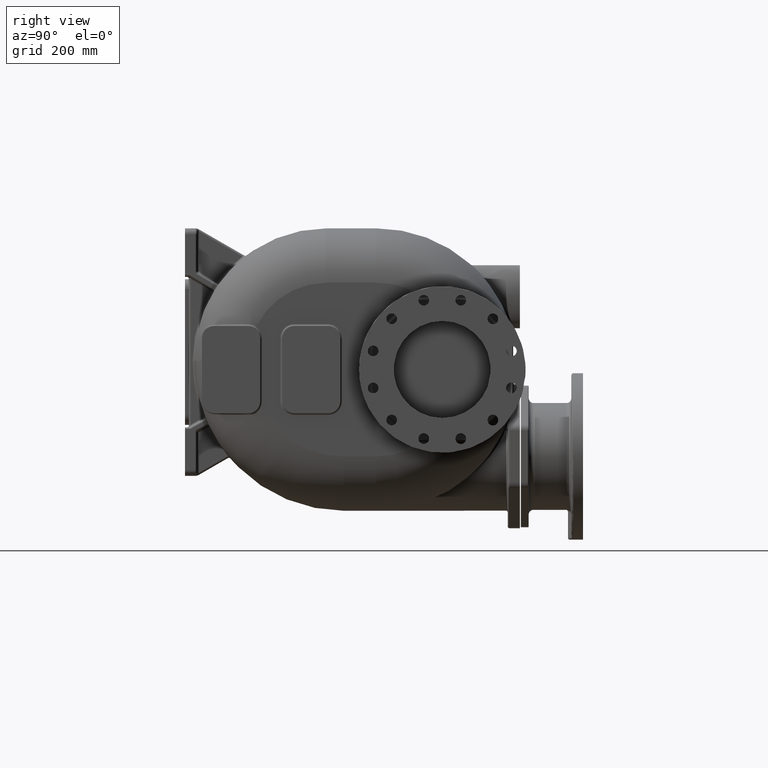
[diagram: clean part render]
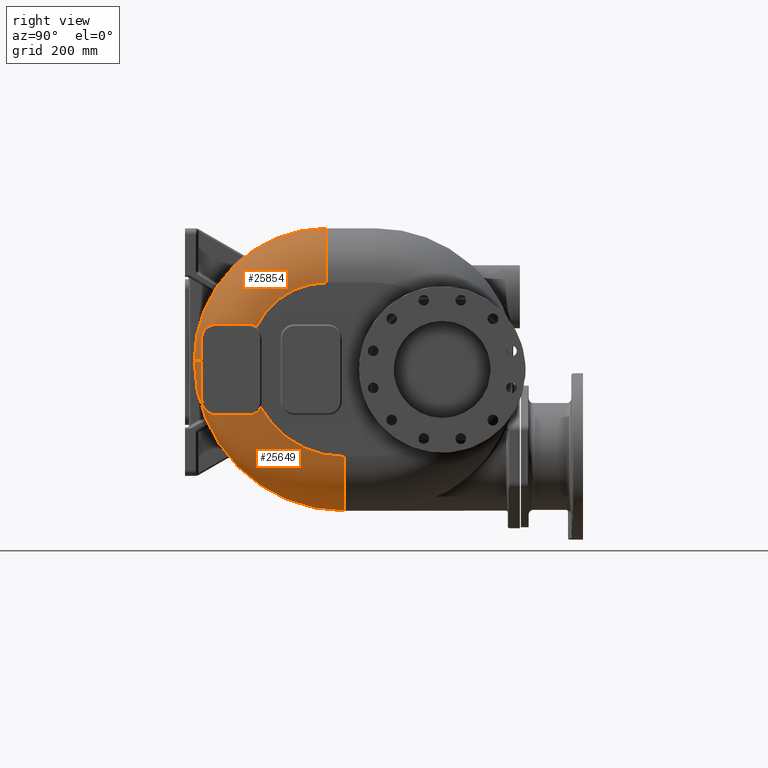
[diagram: same view with one multi-face feature highlighted, each face labeled with its STEP entity id]
A machine part, right view. The highlighted faces form ONE feature: a constant-radius fillet chain: 2 tangent blend faces with common blend radius 112 mm. The faces share edges in the B-rep.
Their STEP definitions:
[1] entity #25649 (Torus):
#2697=CARTESIAN_POINT('',(1.36E2,3.28E2,-1.8E1));
#2698=DIRECTION('',(1.E0,0.E0,0.E0));
#2699=DIRECTION('',(0.E0,-1.E0,0.E0));
#2700=AXIS2_PLACEMENT_3D('',#2697,#2698,#2699);
#4772=CARTESIAN_POINT('',(1.672949240605E2,3.469895152067E1,-9.996628627530E1));
#4773=CARTESIAN_POINT('',(1.671399033274E2,3.469992224291E1,-1.001373556917E2));
#4774=CARTESIAN_POINT('',(1.668409293172E2,3.470479170282E1,-1.004743755294E2));
#4775=CARTESIAN_POINT('',(1.664249908145E2,3.472045772033E1,-1.009654113129E2));
#4776=CARTESIAN_POINT('',(1.660431148490E2,3.474349742183E1,-1.014386891867E2));
#4777=CARTESIAN_POINT('',(1.656954130136E2,3.477280370240E1,-1.018919022476E2));
#4778=CARTESIAN_POINT('',(1.653820718824E2,3.480692693115E1,-1.023214130557E2));
#4779=CARTESIAN_POINT('',(1.651011258450E2,3.484498824612E1,-1.027275902532E2));
#4780=CARTESIAN_POINT('',(1.648483328228E2,3.488669435597E1,-1.031147613705E2));
#4781=CARTESIAN_POINT('',(1.646196812224E2,3.493184193477E1,-1.034869988806E2));
#4782=CARTESIAN_POINT('',(1.644124938687E2,3.498019251298E1,-1.038467372658E2));
#4783=CARTESIAN_POINT('',(1.642249448213E2,3.503140659501E1,-1.041951132892E2));
#4784=CARTESIAN_POINT('',(1.640549891373E2,3.508528923255E1,-1.045338436220E2));
#4785=CARTESIAN_POINT('',(1.639009720932E2,3.514168556456E1,-1.048643093004E2));
#4786=CARTESIAN_POINT('',(1.637627965646E2,3.520021574577E1,-1.051856567752E2));
#4787=CARTESIAN_POINT('',(1.636400418360E2,3.526051767977E1,-1.054973666954E2));
#4788=CARTESIAN_POINT('',(1.635322248870E2,3.532218340557E1,-1.057987947571E2));
#4789=CARTESIAN_POINT('',(1.634385237303E2,3.538494025003E1,-1.060900195894E2));
#4790=CARTESIAN_POINT('',(1.633581005847E2,3.544851836699E1,-1.063711088943E2));
#4791=CARTESIAN_POINT('',(1.632895429985E2,3.551321878954E1,-1.066444828617E2));
#4792=CARTESIAN_POINT('',(1.632314228550E2,3.557992119187E1,-1.069144136390E2));
#4793=CARTESIAN_POINT('',(1.631831449610E2,3.564940529581E1,-1.071840511124E2));
#4794=CARTESIAN_POINT('',(1.631441494284E2,3.572200973772E1,-1.074550230952E2));
#4795=CARTESIAN_POINT('',(1.631141343026E2,3.579846383242E1,-1.077299747648E2));
#4796=CARTESIAN_POINT('',(1.630935830101E2,3.587827121058E1,-1.080068610388E2));
#4797=CARTESIAN_POINT('',(1.630828137151E2,3.596026986012E1,-1.082816460756E2));
#4798=CARTESIAN_POINT('',(1.630816555643E2,3.604325582249E1,-1.085506185530E2));
#4799=CARTESIAN_POINT('',(1.630897306343E2,3.612729134144E1,-1.088143486428E2));
#4800=CARTESIAN_POINT('',(1.631068871244E2,3.621257623722E1,-1.090736381084E2));
#4801=CARTESIAN_POINT('',(1.631332014991E2,3.629941603154E1,-1.093294200189E2));
#4802=CARTESIAN_POINT('',(1.631691911028E2,3.638890322116E1,-1.095847444688E2));
#4803=CARTESIAN_POINT('',(1.632151824467E2,3.648209347434E1,-1.098426531262E2));
#4804=CARTESIAN_POINT('',(1.632720120570E2,3.658011982237E1,-1.101059562243E2));
#4805=CARTESIAN_POINT('',(1.633403566950E2,3.668341765431E1,-1.103753421930E2));
#4806=CARTESIAN_POINT('',(1.634210638719E2,3.679252681955E1,-1.106516573943E2));
#4807=CARTESIAN_POINT('',(1.635148785612E2,3.690769912545E1,-1.109348908140E2));
#4808=CARTESIAN_POINT('',(1.636218015092E2,3.702834682539E1,-1.112230031346E2));
#4809=CARTESIAN_POINT('',(1.637415235263E2,3.715378366597E1,-1.115139218259E2));
#4810=CARTESIAN_POINT('',(1.638744816166E2,3.728421768281E1,-1.118077402991E2));
#4811=CARTESIAN_POINT('',(1.640218355204E2,3.742039481028E1,-1.121055780037E2));
#4812=CARTESIAN_POINT('',(1.641848982800E2,3.756306729065E1,-1.124083826933E2));
#4813=CARTESIAN_POINT('',(1.643648724364E2,3.771287251190E1,-1.127167804482E2));
#4814=CARTESIAN_POINT('',(1.645642795076E2,3.787147368607E1,-1.130333459241E2));
#4815=CARTESIAN_POINT('',(1.647860317455E2,3.804070035113E1,-1.133606812075E2));
#4816=CARTESIAN_POINT('',(1.650333781823E2,3.822252289442E1,-1.137013461801E2));
#4817=CARTESIAN_POINT('',(1.653081808128E2,3.841801888234E1,-1.140561817869E2));
#4818=CARTESIAN_POINT('',(1.656113536885E2,3.862753313793E1,-1.144244931270E2));
#4819=CARTESIAN_POINT('',(1.659445547389E2,3.885148036291E1,-1.148050376351E2));
#4820=CARTESIAN_POINT('',(1.663104243548E2,3.909114167277E1,-1.151981421878E2));
#4821=CARTESIAN_POINT('',(1.667128505899E2,3.934867651871E1,-1.156053728349E2));
#4822=CARTESIAN_POINT('',(1.671553083135E2,3.962611035168E1,-1.160278977214E2));
#4823=CARTESIAN_POINT('',(1.676416344105E2,3.992605141286E1,-1.164678825212E2));
#4824=CARTESIAN_POINT('',(1.681772832619E2,4.025149134123E1,-1.169266079974E2));
#4825=CARTESIAN_POINT('',(1.687643598784E2,4.060349216586E1,-1.174022214611E2));
#4826=CARTESIAN_POINT('',(1.694023428615E2,4.098191403430E1,-1.178915408121E2));
#4827=CARTESIAN_POINT('',(1.700935963322E2,4.138893946509E1,-1.183950719994E2));
#4828=CARTESIAN_POINT('',(1.708423908824E2,4.182763321543E1,-1.189133782701E2));
#4829=CARTESIAN_POINT('',(1.716530183063E2,4.230098400146E1,-1.194459965217E2));
#4830=CARTESIAN_POINT('',(1.725291668491E2,4.281210340039E1,-1.199924956382E2));
#4831=CARTESIAN_POINT('',(1.734677027624E2,4.336064947871E1,-1.205490828533E2));
#4832=CARTESIAN_POINT('',(1.744659570942E2,4.394620512883E1,-1.211112867553E2));
#4833=CARTESIAN_POINT('',(1.755210737179E2,4.456849441094E1,-1.216751666602E2));
#4834=CARTESIAN_POINT('',(1.766275797987E2,4.522609983550E1,-1.222366489186E2));
#4835=CARTESIAN_POINT('',(1.777793516737E2,4.591697757704E1,-1.227912156213E2));
#4836=CARTESIAN_POINT('',(1.789704754038E2,4.663897480167E1,-1.233344709261E2));
#4837=CARTESIAN_POINT('',(1.801942639346E2,4.738960207249E1,-1.238627807621E2));
#4838=CARTESIAN_POINT('',(1.814438833923E2,4.816604815353E1,-1.243727527237E2));
#4839=CARTESIAN_POINT('',(1.827124523092E2,4.896503738166E1,-1.248608511916E2));
#4840=CARTESIAN_POINT('',(1.839940090330E2,4.978378796158E1,-1.253247125887E2));
#4841=CARTESIAN_POINT('',(1.852836204502E2,5.061995520015E1,-1.257626420349E2));
#4842=CARTESIAN_POINT('',(1.865760861925E2,5.147063846477E1,-1.261726941953E2));
#4843=CARTESIAN_POINT('',(1.878672737335E2,5.233350569085E1,-1.265537557442E2));
#4844=CARTESIAN_POINT('',(1.891539795749E2,5.320668900502E1,-1.269052106774E2));
#4845=CARTESIAN_POINT('',(1.904328412429E2,5.408793564938E1,-1.272262564062E2));
#4846=CARTESIAN_POINT('',(1.917010517275E2,5.497526362413E1,-1.275165167057E2));
#4847=CARTESIAN_POINT('',(1.929563000837E2,5.586694079444E1,-1.277759349929E2));
#4848=CARTESIAN_POINT('',(1.941961354834E2,5.676093335823E1,-1.280043446219E2));
#4849=CARTESIAN_POINT('',(1.954187607512E2,5.765558276922E1,-1.282018775350E2));
#4850=CARTESIAN_POINT('',(1.966233017909E2,5.854987061055E1,-1.283689749779E2));
#4851=CARTESIAN_POINT('',(1.978087912650E2,5.944262000642E1,-1.285059884557E2));
#4852=CARTESIAN_POINT('',(1.989743811224E2,6.033266295219E1,-1.286132723223E2));
#4853=CARTESIAN_POINT('',(2.001191941472E2,6.121882157338E1,-1.286912888214E2));
#4854=CARTESIAN_POINT('',(2.012425757360E2,6.209998804672E1,-1.287406916174E2));
#4855=CARTESIAN_POINT('',(2.019763340590E2,6.268319389477E1,-1.287547812500E2));
#4856=CARTESIAN_POINT('',(2.023395633732E2,6.297365139369E1,-1.287572800099E2));
#4858=CARTESIAN_POINT('',(2.023395633732E2,6.297365139369E1,-1.287572800099E2));
#4859=CARTESIAN_POINT('',(2.028560539846E2,6.338670809961E1,-1.287608377425E2));
#4860=CARTESIAN_POINT('',(2.038834268704E2,6.422326556516E1,-1.287682330542E2));
#4861=CARTESIAN_POINT('',(2.054066675670E2,6.550996550006E1,-1.287794121625E2));
#4862=CARTESIAN_POINT('',(2.069113494365E2,6.682778630957E1,-1.287910001793E2));
#4863=CARTESIAN_POINT('',(2.083966301021E2,6.817635637886E1,-1.288029029721E2));
#4864=CARTESIAN_POINT('',(2.098617094520E2,6.955515944464E1,-1.288151457256E2));
#4865=CARTESIAN_POINT('',(2.113058182797E2,7.096370000208E1,-1.288277294497E2));
#4866=CARTESIAN_POINT('',(2.127281290451E2,7.240136155865E1,-1.288406686636E2));
#4867=CARTESIAN_POINT('',(2.141282979738E2,7.386798159497E1,-1.288539852213E2));
#4868=CARTESIAN_POINT('',(2.155061965501E2,7.536364968027E1,-1.288677123493E2));
#4869=CARTESIAN_POINT('',(2.168616275253E2,7.688841615789E1,-1.288818793615E2));
#4870=CARTESIAN_POINT('',(2.181944848334E2,7.844245438478E1,-1.288964756595E2));
#4871=CARTESIAN_POINT('',(2.195046270914E2,8.002595128443E1,-1.289114996515E2));
#4872=CARTESIAN_POINT('',(2.207919443391E2,8.163918792789E1,-1.289269531435E2));
#4873=CARTESIAN_POINT('',(2.220560113402E2,8.328210424685E1,-1.289428390579E2));
#4874=CARTESIAN_POINT('',(2.232957603930E2,8.495376465335E1,-1.289591556585E2));
#4875=CARTESIAN_POINT('',(2.245102483032E2,8.665328473009E1,-1.289759054946E2));
#4876=CARTESIAN_POINT('',(2.256986504967E2,8.837983923890E1,-1.289930955109E2));
#4877=CARTESIAN_POINT('',(2.268608869568E2,9.013365351477E1,-1.290107468220E2));
#4878=CARTESIAN_POINT('',(2.279967738683E2,9.191487079906E1,-1.290288844979E2));
#4879=CARTESIAN_POINT('',(2.291061198051E2,9.372367131971E1,-1.290475353682E2));
#4880=CARTESIAN_POINT('',(2.301887553051E2,9.556032330347E1,-1.290666998325E2));
#4881=CARTESIAN_POINT('',(2.312444500672E2,9.742505945607E1,-1.290863836672E2));
#4882=CARTESIAN_POINT('',(2.322730093305E2,9.931826070828E1,-1.291065974841E2));
#4883=CARTESIAN_POINT('',(2.332736282491E2,1.012392102710E2,-1.291273440803E2));
#4884=CARTESIAN_POINT('',(2.342454235522E2,1.031869203281E2,-1.291486266574E2));
#4885=CARTESIAN_POINT('',(2.351875082213E2,1.051602363420E2,-1.291704498035E2));
#4886=CARTESIAN_POINT('',(2.360995265122E2,1.071590044043E2,-1.291928323361E2));
#4887=CARTESIAN_POINT('',(2.369813978840E2,1.091837470356E2,-1.292158042437E2));
#4888=CARTESIAN_POINT('',(2.378329213673E2,1.112348408889E2,-1.292393971435E2));
#4889=CARTESIAN_POINT('',(2.386538653375E2,1.133126974602E2,-1.292636470521E2));
#4890=CARTESIAN_POINT('',(2.394439508462E2,1.154177065283E2,-1.292885578947E2));
#4891=CARTESIAN_POINT('',(2.402028753168E2,1.175503172368E2,-1.293141393901E2));
#4892=CARTESIAN_POINT('',(2.409302062486E2,1.197107360111E2,-1.293404038638E2));
#4893=CARTESIAN_POINT('',(2.416252435829E2,1.218983911452E2,-1.293673580975E2));
#4894=CARTESIAN_POINT('',(2.422873544369E2,1.241127850065E2,-1.293950177594E2));
#4895=CARTESIAN_POINT('',(2.429158805603E2,1.263533774580E2,-1.294233888232E2));
#4896=CARTESIAN_POINT('',(2.435103174565E2,1.286195603948E2,-1.294525297767E2));
#4897=CARTESIAN_POINT('',(2.438832414884E2,1.301471064749E2,-1.294723889157E2));
#4898=CARTESIAN_POINT('',(2.440639287063E2,1.309148942948E2,-1.294824840369E2));
#4900=CARTESIAN_POINT('',(2.440639287063E2,1.309148942948E2,-1.294824840369E2));
#4901=CARTESIAN_POINT('',(2.441207367301E2,1.311563389867E2,-1.294856085190E2));
#4902=CARTESIAN_POINT('',(2.442338503577E2,1.316383384252E2,-1.294850719431E2));
#4903=CARTESIAN_POINT('',(2.444009789249E2,1.323591474810E2,-1.294665695324E2));
#4904=CARTESIAN_POINT('',(2.445657276592E2,1.330767852542E2,-1.294293115231E2));
#4905=CARTESIAN_POINT('',(2.447277525538E2,1.337907185954E2,-1.293738171054E2));
#4906=CARTESIAN_POINT('',(2.448868628296E2,1.345003099385E2,-1.293002023250E2));
#4907=CARTESIAN_POINT('',(2.450428447462E2,1.352049675058E2,-1.292087078743E2));
#4908=CARTESIAN_POINT('',(2.451955076072E2,1.359040981307E2,-1.290995668787E2));
#4909=CARTESIAN_POINT('',(2.453448099855E2,1.365977639598E2,-1.289729007110E2));
#4910=CARTESIAN_POINT('',(2.454907122620E2,1.372860398006E2,-1.288288092646E2));
#4911=CARTESIAN_POINT('',(2.456331794040E2,1.379690614172E2,-1.286674175973E2));
#4912=CARTESIAN_POINT('',(2.457720750303E2,1.386464495976E2,-1.284889193336E2));
#4913=CARTESIAN_POINT('',(2.459072636751E2,1.393177848496E2,-1.282935278692E2));
#4914=CARTESIAN_POINT('',(2.460386281185E2,1.399826946111E2,-1.280814396680E2));
#4915=CARTESIAN_POINT('',(2.461659855697E2,1.406404183670E2,-1.278529911072E2));
#4916=CARTESIAN_POINT('',(2.462891688111E2,1.412901969739E2,-1.276085637113E2));
#4917=CARTESIAN_POINT('',(2.464080177456E2,1.419312204444E2,-1.273486134481E2));
#4918=CARTESIAN_POINT('',(2.465225369475E2,1.425635019767E2,-1.270732851682E2));
#4919=CARTESIAN_POINT('',(2.466327583547E2,1.431872009728E2,-1.267826060029E2));
#4920=CARTESIAN_POINT('',(2.467387034937E2,1.438024162006E2,-1.264765765826E2));
#4921=CARTESIAN_POINT('',(2.468403977583E2,1.444093279083E2,-1.261552286826E2));
#4922=CARTESIAN_POINT('',(2.469378560417E2,1.450080452611E2,-1.258185673195E2));
#4923=CARTESIAN_POINT('',(2.470311221186E2,1.455988684964E2,-1.254664030615E2));
#4924=CARTESIAN_POINT('',(2.471200177436E2,1.461806516317E2,-1.250993789941E2));
#4925=CARTESIAN_POINT('',(2.472043255739E2,1.467517876456E2,-1.247185721150E2));
#4926=CARTESIAN_POINT('',(2.472838842060E2,1.473108020618E2,-1.243251521952E2));
#4927=CARTESIAN_POINT('',(2.473586423052E2,1.478567754813E2,-1.239200498490E2));
#4928=CARTESIAN_POINT('',(2.474286142187E2,1.483891221299E2,-1.235040263438E2));
#4929=CARTESIAN_POINT('',(2.474938134199E2,1.489071090206E2,-1.230780426464E2));
#4930=CARTESIAN_POINT('',(2.475543693567E2,1.494108013636E2,-1.226424387202E2));
#4931=CARTESIAN_POINT('',(2.476104624699E2,1.499007737093E2,-1.221971948162E2));
#4932=CARTESIAN_POINT('',(2.476622569911E2,1.503775574342E2,-1.217422539964E2));
#4933=CARTESIAN_POINT('',(2.477098664295E2,1.508412591142E2,-1.212778606371E2));
#4934=CARTESIAN_POINT('',(2.477533748804E2,1.512916538033E2,-1.208045807651E2));
#4935=CARTESIAN_POINT('',(2.477928834042E2,1.517286050820E2,-1.203229058599E2));
#4936=CARTESIAN_POINT('',(2.478285001930E2,1.521519853315E2,-1.198333251346E2));
#4937=CARTESIAN_POINT('',(2.478603436383E2,1.525617222601E2,-1.193362688034E2));
#4938=CARTESIAN_POINT('',(2.478885334348E2,1.529576945417E2,-1.188322304881E2));
#4939=CARTESIAN_POINT('',(2.479132101322E2,1.533400135729E2,-1.183214157953E2));
#4940=CARTESIAN_POINT('',(2.479345384219E2,1.537092548401E2,-1.178032972244E2));
#4941=CARTESIAN_POINT('',(2.479526617025E2,1.540658867630E2,-1.172773891287E2));
#4942=CARTESIAN_POINT('',(2.479677062208E2,1.544103095997E2,-1.167433088659E2));
#4943=CARTESIAN_POINT('',(2.479797749503E2,1.547425124178E2,-1.162011854201E2));
#4944=CARTESIAN_POINT('',(2.479889743207E2,1.550624797988E2,-1.156510532479E2));
#4945=CARTESIAN_POINT('',(2.479954075118E2,1.553702744201E2,-1.150930036154E2));
#4946=CARTESIAN_POINT('',(2.479991877012E2,1.556655010843E2,-1.145268973687E2));
#4947=CARTESIAN_POINT('',(2.479999918413E2,1.558547423964E2,-1.141445456270E2));
#4948=CARTESIAN_POINT('',(2.479999929474E2,1.559470193424E2,-1.139519175091E2));
#4950=CARTESIAN_POINT('',(1.36E2,1.31E2,-1.8E1));
#4951=DIRECTION('',(0.E0,0.E0,-1.E0));
#4952=DIRECTION('',(5.067909812655E-1,-8.620689655172E-1,0.E0));
#4953=AXIS2_PLACEMENT_3D('',#4950,#4951,#4952);
#4955=CARTESIAN_POINT('',(1.927605921540E2,3.444827203097E1,-1.799999999986E1));
#4956=CARTESIAN_POINT('',(1.927606233562E2,3.444828027144E1,-1.885732292922E1));
#4957=CARTESIAN_POINT('',(1.927482635998E2,3.444854237092E1,-2.057113288367E1));
#4958=CARTESIAN_POINT('',(1.926922462452E2,3.444939599510E1,-2.314154970632E1));
#4959=CARTESIAN_POINT('',(1.925988086210E2,3.445074451928E1,-2.570656003189E1));
#4960=CARTESIAN_POINT('',(1.924681059699E2,3.445254032399E1,-2.826302633707E1));
#4961=CARTESIAN_POINT('',(1.923004663408E2,3.445478415760E1,-3.080730315331E1));
#4962=CARTESIAN_POINT('',(1.920963766874E2,3.445749153471E1,-3.333589511356E1));
#4963=CARTESIAN_POINT('',(1.918564723548E2,3.446069523918E1,-3.584533502422E1));
#4964=CARTESIAN_POINT('',(1.915816021117E2,3.446446443095E1,-3.833204479676E1));
#4965=CARTESIAN_POINT('',(1.912723604993E2,3.446871304970E1,-4.079340302532E1));
#4966=CARTESIAN_POINT('',(1.909293481362E2,3.447335046379E1,-4.322723045483E1));
#4967=CARTESIAN_POINT('',(1.905533008375E2,3.447832125258E1,-4.563128876803E1));
#4968=CARTESIAN_POINT('',(1.901450556426E2,3.448359362591E1,-4.800342556868E1));
#4969=CARTESIAN_POINT('',(1.897055594247E2,3.448916337723E1,-5.034156839083E1));
#4970=CARTESIAN_POINT('',(1.892358580099E2,3.449504382627E1,-5.264370033052E1));
#4971=CARTESIAN_POINT('',(1.887371567984E2,3.450129344576E1,-5.490784795488E1));
#4972=CARTESIAN_POINT('',(1.882105249212E2,3.450788441066E1,-5.713231225694E1));
#4973=CARTESIAN_POINT('',(1.876569237750E2,3.451470051440E1,-5.931544172232E1));
#4974=CARTESIAN_POINT('',(1.870774931043E2,3.452167756646E1,-6.145556513954E1));
#4975=CARTESIAN_POINT('',(1.864733469403E2,3.452877269612E1,-6.355152362321E1));
#4976=CARTESIAN_POINT('',(1.858455173971E2,3.453597250436E1,-6.560276487877E1));
#4977=CARTESIAN_POINT('',(1.851951124827E2,3.454328353814E1,-6.760869448867E1));
#4978=CARTESIAN_POINT('',(1.845232954372E2,3.455074361049E1,-6.956883842164E1));
#4979=CARTESIAN_POINT('',(1.838312667845E2,3.455837095489E1,-7.148260999434E1));
#4980=CARTESIAN_POINT('',(1.831200738871E2,3.456606128156E1,-7.334927587825E1));
#4981=CARTESIAN_POINT('',(1.823909024059E2,3.457375502060E1,-7.516812346530E1));
#4982=CARTESIAN_POINT('',(1.816447874926E2,3.458141387207E1,-7.693902997022E1));
#4983=CARTESIAN_POINT('',(1.808826289249E2,3.458902466968E1,-7.866232136126E1));
#4984=CARTESIAN_POINT('',(1.801053684426E2,3.459659523165E1,-8.033831281982E1));
#4985=CARTESIAN_POINT('',(1.793139259721E2,3.460414753305E1,-8.196741427785E1));
#4986=CARTESIAN_POINT('',(1.785095567151E2,3.461173415884E1,-8.354952910918E1));
#4987=CARTESIAN_POINT('',(1.776933808399E2,3.461929306415E1,-8.508439993257E1));
#4988=CARTESIAN_POINT('',(1.768665924117E2,3.462674841803E1,-8.657167256043E1));
#4989=CARTESIAN_POINT('',(1.760301273404E2,3.463405843091E1,-8.801167743017E1));
#4990=CARTESIAN_POINT('',(1.751845078353E2,3.464120242614E1,-8.940548714157E1));
#4991=CARTESIAN_POINT('',(1.743303088792E2,3.464817767773E1,-9.075406481510E1));
#4992=CARTESIAN_POINT('',(1.734679444745E2,3.465499882969E1,-9.205859457874E1));
#4993=CARTESIAN_POINT('',(1.725983378511E2,3.466168975778E1,-9.331947559006E1));
#4994=CARTESIAN_POINT('',(1.717226739840E2,3.466828950084E1,-9.453684924443E1));
#4995=CARTESIAN_POINT('',(1.708421171938E2,3.467476739932E1,-9.571069974803E1));
#4996=CARTESIAN_POINT('',(1.699578535942E2,3.468109434429E1,-9.684107484867E1));
#4997=CARTESIAN_POINT('',(1.690710776043E2,3.468724819065E1,-9.792812113557E1));
#4998=CARTESIAN_POINT('',(1.681829624705E2,3.469321747753E1,-9.897212305606E1));
#4999=CARTESIAN_POINT('',(1.675908480625E2,3.469705995521E1,-9.963955915591E1));
#5000=CARTESIAN_POINT('',(1.672949240605E2,3.469895152067E1,-9.996628627530E1));
#5208=CARTESIAN_POINT('',(2.48E2,3.28E2,-1.8E1));
#5209=DIRECTION('',(1.E0,0.E0,0.E0));
#5210=DIRECTION('',(0.E0,-8.733654202433E-1,-4.870655425333E-1));
#5211=AXIS2_PLACEMENT_3D('',#5208,#5209,#5210);
#9167=CARTESIAN_POINT('',(1.36E2,3.28E2,-2.15E2));
#9168=DIRECTION('',(0.E0,1.E0,0.E0));
#9169=DIRECTION('',(1.E0,0.E0,0.E0));
#9170=AXIS2_PLACEMENT_3D('',#9167,#9168,#9169);
#20038=CARTESIAN_POINT('',(1.36E2,3.280000000001E2,-3.27E2));
#20040=VERTEX_POINT('',#20038);
#20099=CARTESIAN_POINT('',(2.48E2,3.28E2,-2.15E2));
#20101=VERTEX_POINT('',#20099);
#20105=CARTESIAN_POINT('',(1.36E2,1.9E1,-1.8E1));
#20106=VERTEX_POINT('',#20105);
#20404=VERTEX_POINT('',#4772);
#20405=VERTEX_POINT('',#4856);
#20408=VERTEX_POINT('',#4955);
#20439=CARTESIAN_POINT('',(2.48E2,1.559470256208E2,-1.139519057066E2));
#20441=VERTEX_POINT('',#20439);
#20447=VERTEX_POINT('',#4900);
#25627=CARTESIAN_POINT('',(1.36E2,3.28E2,-1.8E1));
#25628=DIRECTION('',(-1.E0,0.E0,0.E0));
#25629=DIRECTION('',(0.E0,-9.999761117814E-1,6.912008863040E-3));
#25630=AXIS2_PLACEMENT_3D('',#25627,#25628,#25629);
#25631=TOROIDAL_SURFACE('',#25630,1.97E2,1.12E2);
#25633=ORIENTED_EDGE('',*,*,#25632,.T.);
#25635=ORIENTED_EDGE('',*,*,#25634,.T.);
#25637=ORIENTED_EDGE('',*,*,#25636,.T.);
#25639=ORIENTED_EDGE('',*,*,#25638,.T.);
#25641=ORIENTED_EDGE('',*,*,#25640,.T.);
#25642=ORIENTED_EDGE('',*,*,#23511,.F.);
#25644=ORIENTED_EDGE('',*,*,#25643,.F.);
#25646=ORIENTED_EDGE('',*,*,#25645,.T.);
#25647=EDGE_LOOP('',(#25633,#25635,#25637,#25639,#25641,#25642,#25644,#25646));
#25648=FACE_OUTER_BOUND('',#25647,.F.);
#25649=ADVANCED_FACE('',(#25648),#25631,.T.);
#2701=CIRCLE('',#2700,3.09E2);
#4857=B_SPLINE_CURVE_WITH_KNOTS('',3,(#4772,#4773,#4774,#4775,#4776,#4777,#4778,
#4779,#4780,#4781,#4782,#4783,#4784,#4785,#4786,#4787,#4788,#4789,#4790,#4791,
#4792,#4793,#4794,#4795,#4796,#4797,#4798,#4799,#4800,#4801,#4802,#4803,#4804,
#4805,#4806,#4807,#4808,#4809,#4810,#4811,#4812,#4813,#4814,#4815,#4816,#4817,
#4818,#4819,#4820,#4821,#4822,#4823,#4824,#4825,#4826,#4827,#4828,#4829,#4830,
#4831,#4832,#4833,#4834,#4835,#4836,#4837,#4838,#4839,#4840,#4841,#4842,#4843,
#4844,#4845,#4846,#4847,#4848,#4849,#4850,#4851,#4852,#4853,#4854,#4855,#4856),
.UNSPECIFIED.,.F.,.F.,(4,1,1,1,1,1,1,1,1,1,1,1,1,1,1,1,1,1,1,1,1,1,1,1,1,1,1,1,
1,1,1,1,1,1,1,1,1,1,1,1,1,1,1,1,1,1,1,1,1,1,1,1,1,1,1,1,1,1,1,1,1,1,1,1,1,1,1,1,
1,1,1,1,1,1,1,1,1,1,1,1,1,1,4),(0.E0,1.219512195122E-2,2.439024390244E-2,
3.658536585366E-2,4.878048780488E-2,6.097560975610E-2,7.317073170732E-2,
8.536585365854E-2,9.756097560976E-2,1.097560975610E-1,1.219512195122E-1,
1.341463414634E-1,1.463414634146E-1,1.585365853659E-1,1.707317073171E-1,
1.829268292683E-1,1.951219512195E-1,2.073170731707E-1,2.195121951220E-1,
2.317073170732E-1,2.439024390244E-1,2.560975609756E-1,2.682926829268E-1,
2.804878048780E-1,2.926829268293E-1,3.048780487805E-1,3.170731707317E-1,
3.292682926829E-1,3.414634146341E-1,3.536585365854E-1,3.658536585366E-1,
3.780487804878E-1,3.902439024390E-1,4.024390243902E-1,4.146341463415E-1,
4.268292682927E-1,4.390243902439E-1,4.512195121951E-1,4.634146341463E-1,
4.756097560976E-1,4.878048780488E-1,5.E-1,5.121951219512E-1,5.243902439024E-1,
5.365853658537E-1,5.487804878049E-1,5.609756097561E-1,5.731707317073E-1,
5.853658536585E-1,5.975609756098E-1,6.097560975610E-1,6.219512195122E-1,
6.341463414634E-1,6.463414634146E-1,6.585365853659E-1,6.707317073171E-1,
6.829268292683E-1,6.951219512195E-1,7.073170731707E-1,7.195121951220E-1,
7.317073170732E-1,7.439024390244E-1,7.560975609756E-1,7.682926829268E-1,
7.804878048780E-1,7.926829268293E-1,8.048780487805E-1,8.170731707317E-1,
8.292682926829E-1,8.414634146341E-1,8.536585365854E-1,8.658536585366E-1,
8.780487804878E-1,8.902439024390E-1,9.024390243902E-1,9.146341463415E-1,
9.268292682927E-1,9.390243902439E-1,9.512195121951E-1,9.634146341463E-1,
9.756097560976E-1,9.878048780488E-1,1.E0),.UNSPECIFIED.);
#4899=B_SPLINE_CURVE_WITH_KNOTS('',3,(#4858,#4859,#4860,#4861,#4862,#4863,#4864,
#4865,#4866,#4867,#4868,#4869,#4870,#4871,#4872,#4873,#4874,#4875,#4876,#4877,
#4878,#4879,#4880,#4881,#4882,#4883,#4884,#4885,#4886,#4887,#4888,#4889,#4890,
#4891,#4892,#4893,#4894,#4895,#4896,#4897,#4898),.UNSPECIFIED.,.F.,.F.,(4,1,1,1,
1,1,1,1,1,1,1,1,1,1,1,1,1,1,1,1,1,1,1,1,1,1,1,1,1,1,1,1,1,1,1,1,1,1,4),(0.E0,
2.631578947368E-2,5.263157894737E-2,7.894736842105E-2,1.052631578947E-1,
1.315789473684E-1,1.578947368421E-1,1.842105263158E-1,2.105263157895E-1,
2.368421052632E-1,2.631578947368E-1,2.894736842105E-1,3.157894736842E-1,
3.421052631579E-1,3.684210526316E-1,3.947368421053E-1,4.210526315789E-1,
4.473684210526E-1,4.736842105263E-1,5.E-1,5.263157894737E-1,5.526315789474E-1,
5.789473684211E-1,6.052631578947E-1,6.315789473684E-1,6.578947368421E-1,
6.842105263158E-1,7.105263157895E-1,7.368421052632E-1,7.631578947368E-1,
7.894736842105E-1,8.157894736842E-1,8.421052631579E-1,8.684210526316E-1,
8.947368421053E-1,9.210526315789E-1,9.473684210526E-1,9.736842105263E-1,1.E0),
.UNSPECIFIED.);
#4949=B_SPLINE_CURVE_WITH_KNOTS('',3,(#4900,#4901,#4902,#4903,#4904,#4905,#4906,
#4907,#4908,#4909,#4910,#4911,#4912,#4913,#4914,#4915,#4916,#4917,#4918,#4919,
#4920,#4921,#4922,#4923,#4924,#4925,#4926,#4927,#4928,#4929,#4930,#4931,#4932,
#4933,#4934,#4935,#4936,#4937,#4938,#4939,#4940,#4941,#4942,#4943,#4944,#4945,
#4946,#4947,#4948),.UNSPECIFIED.,.F.,.F.,(4,1,1,1,1,1,1,1,1,1,1,1,1,1,1,1,1,1,1,
1,1,1,1,1,1,1,1,1,1,1,1,1,1,1,1,1,1,1,1,1,1,1,1,1,1,1,4),(0.E0,
2.173913043478E-2,4.347826086957E-2,6.521739130435E-2,8.695652173913E-2,
1.086956521739E-1,1.304347826087E-1,1.521739130435E-1,1.739130434783E-1,
1.956521739130E-1,2.173913043478E-1,2.391304347826E-1,2.608695652174E-1,
2.826086956522E-1,3.043478260870E-1,3.260869565217E-1,3.478260869565E-1,
3.695652173913E-1,3.913043478261E-1,4.130434782609E-1,4.347826086957E-1,
4.565217391304E-1,4.782608695652E-1,5.E-1,5.217391304348E-1,5.434782608696E-1,
5.652173913043E-1,5.869565217391E-1,6.086956521739E-1,6.304347826087E-1,
6.521739130435E-1,6.739130434783E-1,6.956521739130E-1,7.173913043478E-1,
7.391304347826E-1,7.608695652174E-1,7.826086956522E-1,8.043478260870E-1,
8.260869565217E-1,8.478260869565E-1,8.695652173913E-1,8.913043478261E-1,
9.130434782609E-1,9.347826086957E-1,9.565217391304E-1,9.782608695652E-1,1.E0),
.UNSPECIFIED.);
#4954=CIRCLE('',#4953,1.12E2);
#5001=B_SPLINE_CURVE_WITH_KNOTS('',3,(#4955,#4956,#4957,#4958,#4959,#4960,#4961,
#4962,#4963,#4964,#4965,#4966,#4967,#4968,#4969,#4970,#4971,#4972,#4973,#4974,
#4975,#4976,#4977,#4978,#4979,#4980,#4981,#4982,#4983,#4984,#4985,#4986,#4987,
#4988,#4989,#4990,#4991,#4992,#4993,#4994,#4995,#4996,#4997,#4998,#4999,#5000),
.UNSPECIFIED.,.F.,.F.,(4,1,1,1,1,1,1,1,1,1,1,1,1,1,1,1,1,1,1,1,1,1,1,1,1,1,1,1,
1,1,1,1,1,1,1,1,1,1,1,1,1,1,1,4),(0.E0,2.325581395349E-2,4.651162790698E-2,
6.976744186047E-2,9.302325581395E-2,1.162790697674E-1,1.395348837209E-1,
1.627906976744E-1,1.860465116279E-1,2.093023255814E-1,2.325581395349E-1,
2.558139534884E-1,2.790697674419E-1,3.023255813953E-1,3.255813953488E-1,
3.488372093023E-1,3.720930232558E-1,3.953488372093E-1,4.186046511628E-1,
4.418604651163E-1,4.651162790698E-1,4.883720930233E-1,5.116279069767E-1,
5.348837209302E-1,5.581395348837E-1,5.813953488372E-1,6.046511627907E-1,
6.279069767442E-1,6.511627906977E-1,6.744186046512E-1,6.976744186047E-1,
7.209302325581E-1,7.441860465116E-1,7.674418604651E-1,7.906976744186E-1,
8.139534883721E-1,8.372093023256E-1,8.604651162791E-1,8.837209302326E-1,
9.069767441860E-1,9.302325581395E-1,9.534883720930E-1,9.767441860465E-1,1.E0),
.UNSPECIFIED.);
#5212=CIRCLE('',#5211,1.97E2);
#9171=CIRCLE('',#9170,1.12E2);
#23511=EDGE_CURVE('',#20106,#20040,#2701,.T.);
#25632=EDGE_CURVE('',#20404,#20405,#4857,.T.);
#25634=EDGE_CURVE('',#20405,#20447,#4899,.T.);
#25636=EDGE_CURVE('',#20447,#20441,#4949,.T.);
#25638=EDGE_CURVE('',#20441,#20101,#5212,.T.);
#25640=EDGE_CURVE('',#20101,#20040,#9171,.T.);
#25643=EDGE_CURVE('',#20408,#20106,#4954,.T.);
#25645=EDGE_CURVE('',#20408,#20404,#5001,.T.);
[2] entity #25854 (Torus):
#2232=CARTESIAN_POINT('',(1.36E2,2.92E2,-1.8E1));
#2233=DIRECTION('',(1.E0,0.E0,0.E0));
#2234=DIRECTION('',(0.E0,0.E0,1.E0));
#2235=AXIS2_PLACEMENT_3D('',#2232,#2233,#2234);
#4950=CARTESIAN_POINT('',(1.36E2,1.31E2,-1.8E1));
#4951=DIRECTION('',(0.E0,0.E0,-1.E0));
#4952=DIRECTION('',(5.067909812655E-1,-8.620689655172E-1,0.E0));
#4953=AXIS2_PLACEMENT_3D('',#4950,#4951,#4952);
#4955=CARTESIAN_POINT('',(1.927605921540E2,3.444827203097E1,-1.799999999986E1));
#5017=CARTESIAN_POINT('',(1.852202285174E2,3.453620777873E1,2.836321163079E1));
#5018=CARTESIAN_POINT('',(1.854311371049E2,3.453400796060E1,2.776878315366E1));
#5019=CARTESIAN_POINT('',(1.858461455721E2,3.452958269487E1,2.656760380207E1));
#5020=CARTESIAN_POINT('',(1.864475398257E2,3.452315808216E1,2.472801119882E1));
#5021=CARTESIAN_POINT('',(1.870267994693E2,3.451682016615E1,2.285198633187E1));
#5022=CARTESIAN_POINT('',(1.875830146206E2,3.451064108487E1,2.094036735899E1));
#5023=CARTESIAN_POINT('',(1.881153280081E2,3.450466451057E1,1.899423180608E1));
#5024=CARTESIAN_POINT('',(1.886228488086E2,3.449888468167E1,1.701447498989E1));
#5025=CARTESIAN_POINT('',(1.891047376606E2,3.449329941144E1,1.500198827852E1));
#5026=CARTESIAN_POINT('',(1.895602056248E2,3.448792810255E1,1.295772422725E1));
#5027=CARTESIAN_POINT('',(1.899884233790E2,3.448280699307E1,1.088312781816E1));
#5028=CARTESIAN_POINT('',(1.903886666521E2,3.447799825484E1,8.779620787807E0));
#5029=CARTESIAN_POINT('',(1.907600492779E2,3.447349417666E1,6.649107451961E0));
#5030=CARTESIAN_POINT('',(1.911017294079E2,3.446929363126E1,4.493806009365E0));
#5031=CARTESIAN_POINT('',(1.914130604666E2,3.446541339579E1,2.315435554580E0));
#5032=CARTESIAN_POINT('',(1.916935631991E2,3.446188674446E1,1.149929868697E-1));
#5033=CARTESIAN_POINT('',(1.919426951460E2,3.445876310157E1,-2.105740025846E0));
#5034=CARTESIAN_POINT('',(1.921596545684E2,3.445602330619E1,-4.342857198973E0));
#5035=CARTESIAN_POINT('',(1.923439057328E2,3.445366691560E1,-6.592943311479E0));
#5036=CARTESIAN_POINT('',(1.924952153973E2,3.445170458771E1,-8.854972134642E0));
#5037=CARTESIAN_POINT('',(1.926133772933E2,3.445017647577E1,-1.112777338754E1));
#5038=CARTESIAN_POINT('',(1.926981445467E2,3.444909369432E1,-1.341014376286E1));
#5039=CARTESIAN_POINT('',(1.927492099321E2,3.444844172917E1,-1.570105635719E1));
#5040=CARTESIAN_POINT('',(1.927605982126E2,3.444827363159E1,-1.723281851806E1));
#5041=CARTESIAN_POINT('',(1.927605921540E2,3.444827203097E1,-1.799999999986E1));
#5043=CARTESIAN_POINT('',(1.36E2,2.92E2,1.43E2));
#5044=DIRECTION('',(0.E0,-1.E0,0.E0));
#5045=DIRECTION('',(1.E0,0.E0,0.E0));
#5046=AXIS2_PLACEMENT_3D('',#5043,#5044,#5045);
#5048=CARTESIAN_POINT('',(2.479999899412E2,1.471872196233E2,5.235807077116E1));
#5049=CARTESIAN_POINT('',(2.479999873242E2,1.470153245492E2,5.248621277393E1));
#5050=CARTESIAN_POINT('',(2.479988179616E2,1.466669188014E2,5.273922681555E1));
#5051=CARTESIAN_POINT('',(2.479933225400E2,1.461308985398E2,5.310995839567E1));
#5052=CARTESIAN_POINT('',(2.479839984761E2,1.455815268830E2,5.347047478563E1));
#5053=CARTESIAN_POINT('',(2.479707147575E2,1.450192028874E2,5.382027044996E1));
#5054=CARTESIAN_POINT('',(2.479533687609E2,1.444442662800E2,5.415860204246E1));
#5055=CARTESIAN_POINT('',(2.479318693540E2,1.438571252145E2,5.448477228236E1));
#5056=CARTESIAN_POINT('',(2.479061377976E2,1.432581422283E2,5.479816484949E1));
#5057=CARTESIAN_POINT('',(2.478761265873E2,1.426481009787E2,5.509809022084E1));
#5058=CARTESIAN_POINT('',(2.478418396899E2,1.420282727700E2,5.538369025491E1));
#5059=CARTESIAN_POINT('',(2.478033153635E2,1.413999455493E2,5.565422571626E1));
#5060=CARTESIAN_POINT('',(2.477606174081E2,1.407642960332E2,5.590911803956E1));
#5061=CARTESIAN_POINT('',(2.477137695347E2,1.401216039052E2,5.614820071793E1));
#5062=CARTESIAN_POINT('',(2.476628096021E2,1.394722528790E2,5.637125531444E1));
#5063=CARTESIAN_POINT('',(2.476077846090E2,1.388166097451E2,5.657806267778E1));
#5064=CARTESIAN_POINT('',(2.475487316168E2,1.381548521785E2,5.676848769869E1));
#5065=CARTESIAN_POINT('',(2.474856906367E2,1.374871731546E2,5.694244068619E1));
#5066=CARTESIAN_POINT('',(2.474187026212E2,1.368137289949E2,5.709980501475E1));
#5067=CARTESIAN_POINT('',(2.473478376500E2,1.361349149195E2,5.724039484222E1));
#5068=CARTESIAN_POINT('',(2.472731861334E2,1.354512281676E2,5.736400756196E1));
#5069=CARTESIAN_POINT('',(2.471948506922E2,1.347631808481E2,5.747044846930E1));
#5070=CARTESIAN_POINT('',(2.471129297344E2,1.340711618333E2,5.755954952931E1));
#5071=CARTESIAN_POINT('',(2.470275076337E2,1.333753868606E2,5.763114897855E1));
#5072=CARTESIAN_POINT('',(2.469386810900E2,1.326761270757E2,5.768507919345E1));
#5073=CARTESIAN_POINT('',(2.468465416630E2,1.319736895130E2,5.772132163831E1));
#5074=CARTESIAN_POINT('',(2.467512214507E2,1.312683447330E2,5.773952526531E1));
#5075=CARTESIAN_POINT('',(2.466855639655E2,1.307964674705E2,5.774013751694E1));
#5076=CARTESIAN_POINT('',(2.466522562700E2,1.305600963479E2,5.773723875111E1));
#5078=CARTESIAN_POINT('',(2.466522562700E2,1.305600963479E2,5.773723875111E1));
#5079=CARTESIAN_POINT('',(2.465454307455E2,1.298020380880E2,5.772792703554E1));
#5080=CARTESIAN_POINT('',(2.463194984770E2,1.282923866191E2,5.770958324079E1));
#5081=CARTESIAN_POINT('',(2.459441736592E2,1.260485698967E2,5.768286413114E1));
#5082=CARTESIAN_POINT('',(2.455328516925E2,1.238249945868E2,5.765691748440E1));
#5083=CARTESIAN_POINT('',(2.450859047189E2,1.216216728704E2,5.763171327010E1));
#5084=CARTESIAN_POINT('',(2.446036936153E2,1.194384990423E2,5.760722794077E1));
#5085=CARTESIAN_POINT('',(2.440865348862E2,1.172753247513E2,5.758343883668E1));
#5086=CARTESIAN_POINT('',(2.435347987133E2,1.151322998883E2,5.756031854782E1));
#5087=CARTESIAN_POINT('',(2.429489089397E2,1.130097832508E2,5.753784548020E1));
#5088=CARTESIAN_POINT('',(2.423292895439E2,1.109081010174E2,5.751599953556E1));
#5089=CARTESIAN_POINT('',(2.416763157299E2,1.088274081502E2,5.749476178257E1));
#5090=CARTESIAN_POINT('',(2.409902935233E2,1.067676806014E2,5.747411382342E1));
#5091=CARTESIAN_POINT('',(2.402715075875E2,1.047288988422E2,5.745404284107E1));
#5092=CARTESIAN_POINT('',(2.395202569280E2,1.027111364760E2,5.743452846084E1));
#5093=CARTESIAN_POINT('',(2.387368941988E2,1.007146343201E2,5.741554685044E1));
#5094=CARTESIAN_POINT('',(2.379217558602E2,9.873959800082E1,5.739707828175E1));
#5095=CARTESIAN_POINT('',(2.370751619669E2,9.678621154278E1,5.737910528375E1));
#5096=CARTESIAN_POINT('',(2.361975148684E2,9.485485269997E1,5.736161539747E1));
#5097=CARTESIAN_POINT('',(2.352892343294E2,9.294591549269E1,5.734459952455E1));
#5098=CARTESIAN_POINT('',(2.343507559524E2,9.105980464113E1,5.732805174896E1));
#5099=CARTESIAN_POINT('',(2.333824494650E2,8.919677456380E1,5.731196899639E1));
#5100=CARTESIAN_POINT('',(2.323844415302E2,8.735663520353E1,5.729632812935E1));
#5101=CARTESIAN_POINT('',(2.313567679339E2,8.553912194987E1,5.728110760829E1));
#5102=CARTESIAN_POINT('',(2.302998283757E2,8.374466890644E1,5.726629474150E1));
#5103=CARTESIAN_POINT('',(2.292144571680E2,8.197437953383E1,5.725188491968E1));
#5104=CARTESIAN_POINT('',(2.281015367056E2,8.022929416257E1,5.723787551895E1));
#5105=CARTESIAN_POINT('',(2.269614139576E2,7.850954206180E1,5.722425943950E1));
#5106=CARTESIAN_POINT('',(2.257942071039E2,7.681495122169E1,5.721103004614E1));
#5107=CARTESIAN_POINT('',(2.246000494481E2,7.514543325586E1,5.719818542524E1));
#5108=CARTESIAN_POINT('',(2.233791258702E2,7.350101749791E1,5.718572403444E1));
#5109=CARTESIAN_POINT('',(2.221316703908E2,7.188181821785E1,5.717361685494E1));
#5110=CARTESIAN_POINT('',(2.208578952031E2,7.028795022050E1,5.716184224564E1));
#5111=CARTESIAN_POINT('',(2.195584140098E2,6.872003166060E1,5.715038432696E1));
#5112=CARTESIAN_POINT('',(2.182338692338E2,6.717865129654E1,5.713923795642E1));
#5113=CARTESIAN_POINT('',(2.168849058230E2,6.566440141822E1,5.712837955296E1));
#5114=CARTESIAN_POINT('',(2.155122463816E2,6.417775177620E1,5.711787607644E1));
#5115=CARTESIAN_POINT('',(2.145816880093E2,6.320559463489E1,5.711094479896E1));
#5116=CARTESIAN_POINT('',(2.141127286875E2,6.272419697245E1,5.710759064435E1));
#5118=CARTESIAN_POINT('',(2.141127286875E2,6.272419697245E1,5.710759064435E1));
#5119=CARTESIAN_POINT('',(2.138473757910E2,6.245183271193E1,5.710569600988E1));
#5120=CARTESIAN_POINT('',(2.133126941935E2,6.190572892699E1,5.709385755764E1));
#5121=CARTESIAN_POINT('',(2.124980084515E2,6.108268051420E1,5.705147435537E1));
#5122=CARTESIAN_POINT('',(2.116718002382E2,6.025674988806E1,5.698415265564E1));
#5123=CARTESIAN_POINT('',(2.108346599622E2,5.942881279959E1,5.689157508404E1));
#5124=CARTESIAN_POINT('',(2.099873675390E2,5.859979041400E1,5.677353129312E1));
#5125=CARTESIAN_POINT('',(2.091306840525E2,5.777056931388E1,5.662982098263E1));
#5126=CARTESIAN_POINT('',(2.082654716928E2,5.694205046178E1,5.646019592971E1));
#5127=CARTESIAN_POINT('',(2.073924520315E2,5.611497846028E1,5.626445655327E1));
#5128=CARTESIAN_POINT('',(2.065132266011E2,5.529089443475E1,5.604268178523E1));
#5129=CARTESIAN_POINT('',(2.056302177130E2,5.447202468465E1,5.579532138243E1));
#5130=CARTESIAN_POINT('',(2.047453573774E2,5.365997772616E1,5.552266083319E1));
#5131=CARTESIAN_POINT('',(2.038599322817E2,5.285572195368E1,5.522494670004E1));
#5132=CARTESIAN_POINT('',(2.029757473311E2,5.206064806197E1,5.490269214763E1));
#5133=CARTESIAN_POINT('',(2.020955377418E2,5.127693325422E1,5.455701371653E1));
#5134=CARTESIAN_POINT('',(2.012218873821E2,5.050643960879E1,5.418891646478E1));
#5135=CARTESIAN_POINT('',(2.003565540365E2,4.975019723419E1,5.379911769576E1));
#5136=CARTESIAN_POINT('',(1.995011558570E2,4.900910237607E1,5.338846327298E1));
#5137=CARTESIAN_POINT('',(1.986588083175E2,4.828530901948E1,5.295873059351E1));
#5138=CARTESIAN_POINT('',(1.978330922933E2,4.758131598903E1,5.251236402997E1));
#5139=CARTESIAN_POINT('',(1.970262085902E2,4.689821344184E1,5.205078211802E1));
#5140=CARTESIAN_POINT('',(1.962388226614E2,4.623580906334E1,5.157472924671E1));
#5141=CARTESIAN_POINT('',(1.954721299380E2,4.559440894152E1,5.108541595511E1));
#5142=CARTESIAN_POINT('',(1.947297856932E2,4.497639625374E1,5.058594834845E1));
#5143=CARTESIAN_POINT('',(1.940155961034E2,4.438430634718E1,5.008024378657E1));
#5144=CARTESIAN_POINT('',(1.933304605697E2,4.381802853397E1,4.956964381872E1));
#5145=CARTESIAN_POINT('',(1.926731545734E2,4.327579152172E1,4.905402419447E1));
#5146=CARTESIAN_POINT('',(1.920426054091E2,4.275607719189E1,4.853339798687E1));
#5147=CARTESIAN_POINT('',(1.914407585804E2,4.225994756210E1,4.801045993868E1));
#5148=CARTESIAN_POINT('',(1.908696756717E2,4.178868544797E1,4.748868835076E1));
#5149=CARTESIAN_POINT('',(1.903307163247E2,4.134301827509E1,4.697117655404E1));
#5150=CARTESIAN_POINT('',(1.898222049511E2,4.092097369617E1,4.645722538697E1));
#5151=CARTESIAN_POINT('',(1.893425189539E2,4.052080452360E1,4.594643099503E1));
#5152=CARTESIAN_POINT('',(1.888899641967E2,4.014079504120E1,4.543827830254E1));
#5153=CARTESIAN_POINT('',(1.884643983804E2,3.978063569211E1,4.493412396915E1));
#5154=CARTESIAN_POINT('',(1.880654177176E2,3.943989512116E1,4.443529921641E1));
#5155=CARTESIAN_POINT('',(1.876924194896E2,3.911810772931E1,4.394328663108E1));
#5156=CARTESIAN_POINT('',(1.873446876624E2,3.881448706158E1,4.345835353595E1));
#5157=CARTESIAN_POINT('',(1.870214279591E2,3.852820480794E1,4.298057522705E1));
#5158=CARTESIAN_POINT('',(1.867217343882E2,3.825845038305E1,4.251016286334E1));
#5159=CARTESIAN_POINT('',(1.864443323593E2,3.800415078484E1,4.204685758372E1));
#5160=CARTESIAN_POINT('',(1.861873291299E2,3.776369120053E1,4.158924262463E1));
#5161=CARTESIAN_POINT('',(1.859490694839E2,3.753565587932E1,4.113598073196E1));
#5162=CARTESIAN_POINT('',(1.857277373992E2,3.731843146692E1,4.068501029140E1));
#5163=CARTESIAN_POINT('',(1.855230583227E2,3.711184855329E1,4.023693929629E1));
#5164=CARTESIAN_POINT('',(1.853356041933E2,3.691657641806E1,3.979417041121E1));
#5165=CARTESIAN_POINT('',(1.851650051989E2,3.673242800908E1,3.935744901114E1));
#5166=CARTESIAN_POINT('',(1.850106877592E2,3.655901954263E1,3.892703776351E1));
#5167=CARTESIAN_POINT('',(1.848719561217E2,3.639584140671E1,3.850283859836E1));
#5168=CARTESIAN_POINT('',(1.847480260076E2,3.624225314540E1,3.808427540160E1));
#5169=CARTESIAN_POINT('',(1.846382228888E2,3.609770863980E1,3.767087107377E1));
#5170=CARTESIAN_POINT('',(1.845415322121E2,3.596112433175E1,3.726035811816E1));
#5171=CARTESIAN_POINT('',(1.844572148343E2,3.583149566124E1,3.685006916204E1));
#5172=CARTESIAN_POINT('',(1.843845238132E2,3.570788650820E1,3.643753858394E1));
#5173=CARTESIAN_POINT('',(1.843233163581E2,3.559024867546E1,3.602299251710E1));
#5174=CARTESIAN_POINT('',(1.842735206703E2,3.547854322966E1,3.560652365847E1));
#5175=CARTESIAN_POINT('',(1.842351745737E2,3.537283164849E1,3.518842144254E1));
#5176=CARTESIAN_POINT('',(1.842084968750E2,3.527378824886E1,3.477151461261E1));
#5177=CARTESIAN_POINT('',(1.841934609726E2,3.518200706909E1,3.435890093416E1));
#5178=CARTESIAN_POINT('',(1.841897505378E2,3.509761928440E1,3.395217230759E1));
#5179=CARTESIAN_POINT('',(1.841971089262E2,3.501972978888E1,3.354767824175E1));
#5180=CARTESIAN_POINT('',(1.842158005882E2,3.494784654407E1,3.314236498698E1));
#5181=CARTESIAN_POINT('',(1.842458555877E2,3.488140089181E1,3.273324410670E1));
#5182=CARTESIAN_POINT('',(1.842874707189E2,3.482012004533E1,3.231830057534E1));
#5183=CARTESIAN_POINT('',(1.843412171518E2,3.476380925492E1,3.189488302108E1));
#5184=CARTESIAN_POINT('',(1.844076068748E2,3.471274398299E1,3.146279590831E1));
#5185=CARTESIAN_POINT('',(1.844865858823E2,3.466754370829E1,3.102505866239E1));
#5186=CARTESIAN_POINT('',(1.845778826937E2,3.462864522395E1,3.058437611283E1));
#5187=CARTESIAN_POINT('',(1.846813346523E2,3.459628669377E1,3.014217389745E1));
#5188=CARTESIAN_POINT('',(1.847970238697E2,3.457057849524E1,2.969858979169E1));
#5189=CARTESIAN_POINT('',(1.849251665454E2,3.455179529390E1,2.925415619387E1));
#5190=CARTESIAN_POINT('',(1.850651527031E2,3.453962502850E1,2.880881863859E1));
#5191=CARTESIAN_POINT('',(1.851674585676E2,3.453674968644E1,2.851190519538E1));
#5192=CARTESIAN_POINT('',(1.852202285174E2,3.453620777873E1,2.836321163079E1));
#5227=CARTESIAN_POINT('',(2.48E2,2.92E2,-1.8E1));
#5228=DIRECTION('',(1.E0,0.E0,0.E0));
#5229=DIRECTION('',(0.E0,0.E0,1.E0));
#5230=AXIS2_PLACEMENT_3D('',#5227,#5228,#5229);
#20096=CARTESIAN_POINT('',(1.36E2,2.920000000005E2,2.55E2));
#20098=VERTEX_POINT('',#20096);
#20105=CARTESIAN_POINT('',(1.36E2,1.9E1,-1.8E1));
#20106=VERTEX_POINT('',#20105);
#20108=CARTESIAN_POINT('',(2.48E2,2.92E2,1.43E2));
#20110=VERTEX_POINT('',#20108);
#20408=VERTEX_POINT('',#4955);
#20410=VERTEX_POINT('',#5017);
#20412=VERTEX_POINT('',#5118);
#20414=CARTESIAN_POINT('',(2.48E2,1.471872175322E2,5.235807014087E1));
#20415=VERTEX_POINT('',#20414);
#20449=VERTEX_POINT('',#5078);
#25834=CARTESIAN_POINT('',(1.36E2,2.92E2,-1.8E1));
#25835=DIRECTION('',(-1.E0,0.E0,0.E0));
#25836=DIRECTION('',(0.E0,7.823465046060E-3,9.999693962290E-1));
#25837=AXIS2_PLACEMENT_3D('',#25834,#25835,#25836);
#25838=TOROIDAL_SURFACE('',#25837,1.61E2,1.12E2);
#25839=ORIENTED_EDGE('',*,*,#25824,.T.);
#25840=ORIENTED_EDGE('',*,*,#25643,.T.);
#25841=ORIENTED_EDGE('',*,*,#23453,.F.);
#25843=ORIENTED_EDGE('',*,*,#25842,.F.);
#25845=ORIENTED_EDGE('',*,*,#25844,.T.);
#25847=ORIENTED_EDGE('',*,*,#25846,.T.);
#25849=ORIENTED_EDGE('',*,*,#25848,.T.);
#25851=ORIENTED_EDGE('',*,*,#25850,.T.);
#25852=EDGE_LOOP('',(#25839,#25840,#25841,#25843,#25845,#25847,#25849,#25851));
#25853=FACE_OUTER_BOUND('',#25852,.F.);
#25854=ADVANCED_FACE('',(#25853),#25838,.T.);
#2236=CIRCLE('',#2235,2.73E2);
#4954=CIRCLE('',#4953,1.12E2);
#5042=B_SPLINE_CURVE_WITH_KNOTS('',3,(#5017,#5018,#5019,#5020,#5021,#5022,#5023,
#5024,#5025,#5026,#5027,#5028,#5029,#5030,#5031,#5032,#5033,#5034,#5035,#5036,
#5037,#5038,#5039,#5040,#5041),.UNSPECIFIED.,.F.,.F.,(4,1,1,1,1,1,1,1,1,1,1,1,1,
1,1,1,1,1,1,1,1,1,4),(0.E0,4.545454545455E-2,9.090909090909E-2,
1.363636363636E-1,1.818181818182E-1,2.272727272727E-1,2.727272727273E-1,
3.181818181818E-1,3.636363636364E-1,4.090909090909E-1,4.545454545455E-1,5.E-1,
5.454545454545E-1,5.909090909091E-1,6.363636363636E-1,6.818181818182E-1,
7.272727272727E-1,7.727272727273E-1,8.181818181818E-1,8.636363636364E-1,
9.090909090909E-1,9.545454545455E-1,1.E0),.UNSPECIFIED.);
#5047=CIRCLE('',#5046,1.12E2);
#5077=B_SPLINE_CURVE_WITH_KNOTS('',3,(#5048,#5049,#5050,#5051,#5052,#5053,#5054,
#5055,#5056,#5057,#5058,#5059,#5060,#5061,#5062,#5063,#5064,#5065,#5066,#5067,
#5068,#5069,#5070,#5071,#5072,#5073,#5074,#5075,#5076),.UNSPECIFIED.,.F.,.F.,(4,
1,1,1,1,1,1,1,1,1,1,1,1,1,1,1,1,1,1,1,1,1,1,1,1,1,4),(0.E0,3.846153846154E-2,
7.692307692308E-2,1.153846153846E-1,1.538461538462E-1,1.923076923077E-1,
2.307692307692E-1,2.692307692308E-1,3.076923076923E-1,3.461538461538E-1,
3.846153846154E-1,4.230769230769E-1,4.615384615385E-1,5.E-1,5.384615384615E-1,
5.769230769231E-1,6.153846153846E-1,6.538461538462E-1,6.923076923077E-1,
7.307692307692E-1,7.692307692308E-1,8.076923076923E-1,8.461538461538E-1,
8.846153846154E-1,9.230769230769E-1,9.615384615385E-1,1.E0),.UNSPECIFIED.);
#5117=B_SPLINE_CURVE_WITH_KNOTS('',3,(#5078,#5079,#5080,#5081,#5082,#5083,#5084,
#5085,#5086,#5087,#5088,#5089,#5090,#5091,#5092,#5093,#5094,#5095,#5096,#5097,
#5098,#5099,#5100,#5101,#5102,#5103,#5104,#5105,#5106,#5107,#5108,#5109,#5110,
#5111,#5112,#5113,#5114,#5115,#5116),.UNSPECIFIED.,.F.,.F.,(4,1,1,1,1,1,1,1,1,1,
1,1,1,1,1,1,1,1,1,1,1,1,1,1,1,1,1,1,1,1,1,1,1,1,1,1,4),(0.E0,2.777777777778E-2,
5.555555555556E-2,8.333333333333E-2,1.111111111111E-1,1.388888888889E-1,
1.666666666667E-1,1.944444444444E-1,2.222222222222E-1,2.5E-1,2.777777777778E-1,
3.055555555556E-1,3.333333333333E-1,3.611111111111E-1,3.888888888889E-1,
4.166666666667E-1,4.444444444444E-1,4.722222222222E-1,5.E-1,5.277777777778E-1,
5.555555555556E-1,5.833333333333E-1,6.111111111111E-1,6.388888888889E-1,
6.666666666667E-1,6.944444444444E-1,7.222222222222E-1,7.5E-1,7.777777777778E-1,
8.055555555556E-1,8.333333333333E-1,8.611111111111E-1,8.888888888889E-1,
9.166666666667E-1,9.444444444444E-1,9.722222222222E-1,1.E0),.UNSPECIFIED.);
#5193=B_SPLINE_CURVE_WITH_KNOTS('',3,(#5118,#5119,#5120,#5121,#5122,#5123,#5124,
#5125,#5126,#5127,#5128,#5129,#5130,#5131,#5132,#5133,#5134,#5135,#5136,#5137,
#5138,#5139,#5140,#5141,#5142,#5143,#5144,#5145,#5146,#5147,#5148,#5149,#5150,
#5151,#5152,#5153,#5154,#5155,#5156,#5157,#5158,#5159,#5160,#5161,#5162,#5163,
#5164,#5165,#5166,#5167,#5168,#5169,#5170,#5171,#5172,#5173,#5174,#5175,#5176,
#5177,#5178,#5179,#5180,#5181,#5182,#5183,#5184,#5185,#5186,#5187,#5188,#5189,
#5190,#5191,#5192),.UNSPECIFIED.,.F.,.F.,(4,1,1,1,1,1,1,1,1,1,1,1,1,1,1,1,1,1,1,
1,1,1,1,1,1,1,1,1,1,1,1,1,1,1,1,1,1,1,1,1,1,1,1,1,1,1,1,1,1,1,1,1,1,1,1,1,1,1,1,
1,1,1,1,1,1,1,1,1,1,1,1,1,4),(0.E0,1.388888888889E-2,2.777777777778E-2,
4.166666666667E-2,5.555555555556E-2,6.944444444444E-2,8.333333333333E-2,
9.722222222222E-2,1.111111111111E-1,1.25E-1,1.388888888889E-1,1.527777777778E-1,
1.666666666667E-1,1.805555555556E-1,1.944444444444E-1,2.083333333333E-1,
2.222222222222E-1,2.361111111111E-1,2.5E-1,2.638888888889E-1,2.777777777778E-1,
2.916666666667E-1,3.055555555556E-1,3.194444444444E-1,3.333333333333E-1,
3.472222222222E-1,3.611111111111E-1,3.75E-1,3.888888888889E-1,4.027777777778E-1,
4.166666666667E-1,4.305555555556E-1,4.444444444444E-1,4.583333333333E-1,
4.722222222222E-1,4.861111111111E-1,5.E-1,5.138888888889E-1,5.277777777778E-1,
5.416666666667E-1,5.555555555556E-1,5.694444444444E-1,5.833333333333E-1,
5.972222222222E-1,6.111111111111E-1,6.25E-1,6.388888888889E-1,6.527777777778E-1,
6.666666666667E-1,6.805555555556E-1,6.944444444444E-1,7.083333333333E-1,
7.222222222222E-1,7.361111111111E-1,7.5E-1,7.638888888889E-1,7.777777777778E-1,
7.916666666667E-1,8.055555555556E-1,8.194444444444E-1,8.333333333333E-1,
8.472222222222E-1,8.611111111111E-1,8.75E-1,8.888888888889E-1,9.027777777778E-1,
9.166666666667E-1,9.305555555556E-1,9.444444444444E-1,9.583333333333E-1,
9.722222222222E-1,9.861111111111E-1,1.E0),.UNSPECIFIED.);
#5231=CIRCLE('',#5230,1.61E2);
#23453=EDGE_CURVE('',#20098,#20106,#2236,.T.);
#25643=EDGE_CURVE('',#20408,#20106,#4954,.T.);
#25824=EDGE_CURVE('',#20410,#20408,#5042,.T.);
#25842=EDGE_CURVE('',#20110,#20098,#5047,.T.);
#25844=EDGE_CURVE('',#20110,#20415,#5231,.T.);
#25846=EDGE_CURVE('',#20415,#20449,#5077,.T.);
#25848=EDGE_CURVE('',#20449,#20412,#5117,.T.);
#25850=EDGE_CURVE('',#20412,#20410,#5193,.T.);